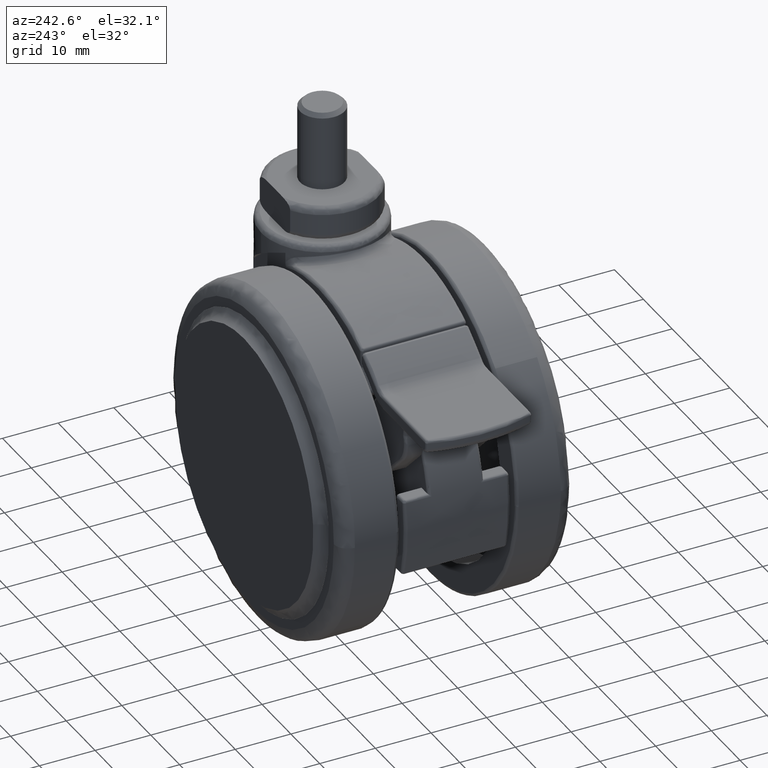
[diagram: clean part render]
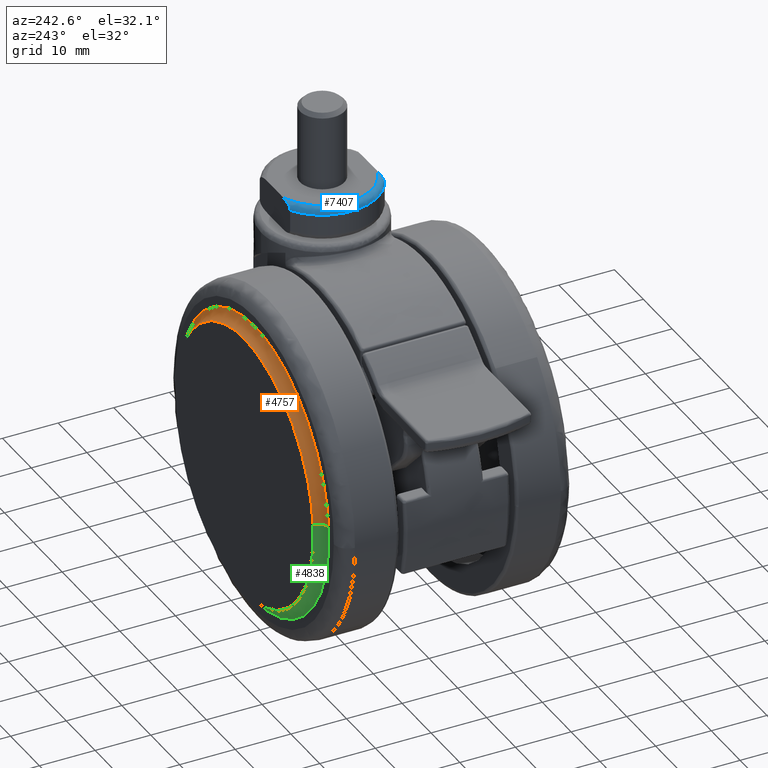
[diagram: same view with three faces highlighted in distinct colors, each labeled with its STEP entity id]
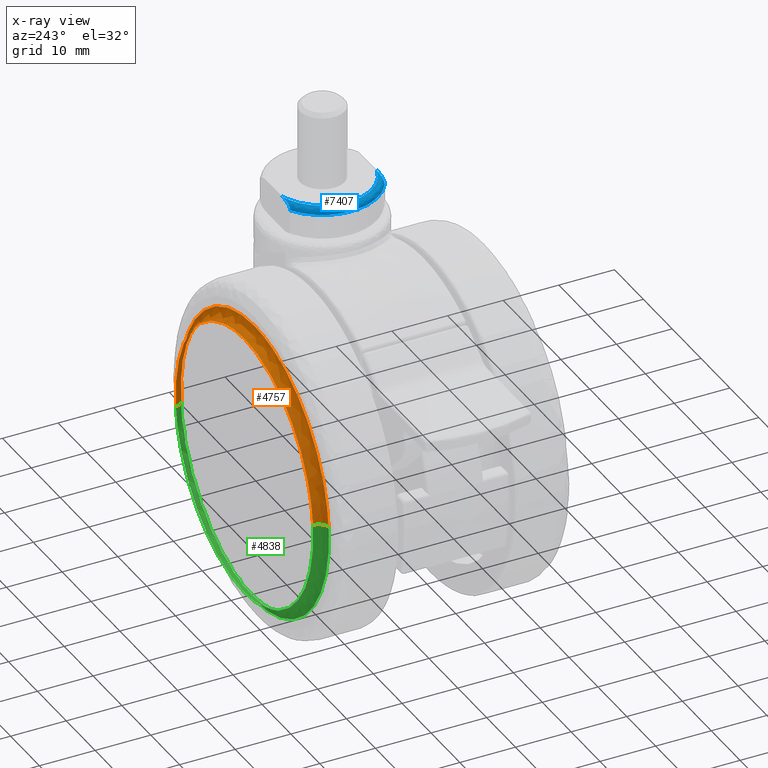
[diagram: x-ray of the same camera — body ghosted, the three highlighted faces saturated]
A machine part, auxiliary view with three faces highlighted in distinct colors.
The next image is the same camera in x-ray (body ghosted, the three faces saturated) — at least one of them is partly hidden behind the body in this view.
Their STEP definitions:

[orange] entity #4757 — the highlighted face is a freeform B-spline surface patch.
#4582=CARTESIAN_POINT('',(23.783222111210389,22.799999999489390,-2.097494252924088));
#4583=VERTEX_POINT('',#4582);
#4584=CARTESIAN_POINT('',(2.792102E-015,22.800000000000001,23.875534258511259));
#4585=VERTEX_POINT('',#4584);
#4586=CARTESIAN_POINT('',(23.783222111210392,22.799999999489387,-2.097494252924089));
#4587=CARTESIAN_POINT('',(23.875534258569957,22.799999999499676,-1.050778486631238));
#4588=CARTESIAN_POINT('',(23.875534258568639,22.799999999510920,-5.057056E-012));
#4589=CARTESIAN_POINT('',(23.875534258538682,22.799999999766211,23.875534258508829));
#4590=CARTESIAN_POINT('',(2.792102E-015,22.800000000000001,23.875534258511259));
#4598=(BOUNDED_CURVE()B_SPLINE_CURVE(2,(#4586,#4587,#4588,#4589,#4590),.UNSPECIFIED.,.F.,.U.)B_SPLINE_CURVE_WITH_KNOTS((3,2,3),(0.734718454855897,0.750000000000000,1.0),.UNSPECIFIED.)CURVE()GEOMETRIC_REPRESENTATION_ITEM()RATIONAL_B_SPLINE_CURVE((0.966381850709618,0.982096556217202,1.0,0.707106781186547,1.0))REPRESENTATION_ITEM(''));
#4599=EDGE_CURVE('',#4583,#4585,#4598,.T.);
#4616=CARTESIAN_POINT('',(-23.783222111210382,22.799999999489401,2.097494252924087));
#4617=VERTEX_POINT('',#4616);
#4633=CARTESIAN_POINT('',(2.792102E-015,22.800000000000001,23.875534258511259));
#4634=CARTESIAN_POINT('',(-21.862569243453560,22.799999999744696,23.875534258513884));
#4635=CARTESIAN_POINT('',(-23.783222111210382,22.799999999489398,2.097494252924088));
#4643=(BOUNDED_CURVE()B_SPLINE_CURVE(2,(#4633,#4634,#4635),.UNSPECIFIED.,.F.,.U.)B_SPLINE_CURVE_WITH_KNOTS((3,3),(0.0,0.234718454855897),.UNSPECIFIED.)CURVE()GEOMETRIC_REPRESENTATION_ITEM()RATIONAL_B_SPLINE_CURVE((1.0,0.725010224969346,0.966381850709618))REPRESENTATION_ITEM(''));
#4644=EDGE_CURVE('',#4585,#4617,#4643,.T.);
#4649=CARTESIAN_POINT('',(25.770919224174254,21.000298617983251,-3.000662758505905));
#4650=CARTESIAN_POINT('',(25.802582218380351,21.000298617983258,-2.641640070902792));
#4651=CARTESIAN_POINT('',(28.113027338513429,21.000298617983258,23.556204996762741));
#4652=CARTESIAN_POINT('',(2.278411170875352,21.000298617983258,25.834616167638092));
#4653=CARTESIAN_POINT('',(-23.556204996762727,21.000298617983258,28.113027338513429));
#4654=CARTESIAN_POINT('',(-25.866650116892103,21.000298617983265,1.915182270890007));
#4655=CARTESIAN_POINT('',(-25.898313111094566,21.000298617983269,1.556159583328023));
#4656=CARTESIAN_POINT('',(23.817966024781878,20.966653986003571,-2.773268699196426));
#4657=CARTESIAN_POINT('',(23.847229556815165,20.966653986003568,-2.441453209765401));
#4658=CARTESIAN_POINT('',(25.982586192516081,20.966653986003571,21.771085672388139));
#4659=CARTESIAN_POINT('',(2.105750260063976,20.966653986003585,23.876835932452099));
#4660=CARTESIAN_POINT('',(-21.771085672388139,20.966653986003582,25.982586192516081));
#4661=CARTESIAN_POINT('',(-23.906442308085616,20.966653986003582,1.770047310401455));
#4662=CARTESIAN_POINT('',(-23.935705840115549,20.966653986003575,1.438231821008440));
#4663=CARTESIAN_POINT('',(23.713570901116626,22.929511528702129,-2.761113348546066));
#4664=CARTESIAN_POINT('',(23.742706169886681,22.929511528702136,-2.430752220038100));
#4665=CARTESIAN_POINT('',(25.868703449720620,22.929511528702140,21.675662109404986));
#4666=CARTESIAN_POINT('',(2.096520670157818,22.929511528702136,23.772182779562819));
#4667=CARTESIAN_POINT('',(-21.675662109404986,22.929511528702140,25.868703449720634));
#4668=CARTESIAN_POINT('',(-23.801659389235532,22.929511528702140,1.762289120316272));
#4669=CARTESIAN_POINT('',(-23.830794658002254,22.929511528702140,1.431927991846149));
#4677=(BOUNDED_SURFACE()B_SPLINE_SURFACE(2,2,((#4649,#4656,#4663),(#4650,#4657,#4664),(#4651,#4658,#4665),(#4652,#4659,#4666),(#4653,#4660,#4667),(#4654,#4661,#4668),(#4655,#4662,#4669)),.UNSPECIFIED.,.F.,.F.,.U.)B_SPLINE_SURFACE_WITH_KNOTS((3,1,2,1,3),(3,3),(0.0,0.859406673807440,43.829740360443992,86.800074047080543,87.659480720787798),(0.0,3.291618988373875),.UNSPECIFIED.)GEOMETRIC_REPRESENTATION_ITEM()RATIONAL_B_SPLINE_SURFACE(((0.925314182526342,0.666727536463893,0.927111751548754),(0.919956585690493,0.662867164055054,0.921743746734416),(0.646719147085479,0.465988171221028,0.647975501226541),(0.914598988854644,0.659006791646214,0.916375741920079),(0.646719147085479,0.465988171221028,0.647975501226541),(0.919956585689869,0.662867164054603,0.921743746733790),(0.925314182525093,0.666727536462993,0.927111751547502)))REPRESENTATION_ITEM('')SURFACE());
#4678=CARTESIAN_POINT('',(25.704905294196660,21.002230012307500,-2.266971685981109));
#4679=VERTEX_POINT('',#4678);
#4680=CARTESIAN_POINT('',(2.571946E-015,21.002230012286780,25.804676258992949));
#4681=VERTEX_POINT('',#4680);
#4682=CARTESIAN_POINT('',(25.704905294196664,21.002230012307496,-2.266971685981109));
#4683=CARTESIAN_POINT('',(25.804676258562225,21.002230012307081,-1.135681336940857));
#4684=CARTESIAN_POINT('',(25.804676258571899,21.002230012306619,3.713154E-011));
#4685=CARTESIAN_POINT('',(25.804676258791702,21.002230012296259,25.804676259010705));
#4686=CARTESIAN_POINT('',(2.571946E-015,21.002230012286780,25.804676258992949));
#4694=(BOUNDED_CURVE()B_SPLINE_CURVE(2,(#4682,#4683,#4684,#4685,#4686),.UNSPECIFIED.,.F.,.U.)B_SPLINE_CURVE_WITH_KNOTS((3,2,3),(0.734718454855625,0.750000000000000,1.0),.UNSPECIFIED.)CURVE()GEOMETRIC_REPRESENTATION_ITEM()RATIONAL_B_SPLINE_CURVE((0.966381850709060,0.982096556216884,1.0,0.707106781186547,1.0))REPRESENTATION_ITEM(''));
#4695=EDGE_CURVE('',#4679,#4681,#4694,.T.);
#4696=ORIENTED_EDGE('',*,*,#4695,.F.);
#4697=CARTESIAN_POINT('',(25.704905294196664,21.002230012307500,-2.266971685981109));
#4698=CARTESIAN_POINT('',(23.984676776129255,21.083073021873290,-2.115260979418126));
#4699=CARTESIAN_POINT('',(23.783222111210392,22.799999999489394,-2.097494252924089));
#4707=(BOUNDED_CURVE()B_SPLINE_CURVE(2,(#4697,#4698,#4699),.UNSPECIFIED.,.F.,.U.)B_SPLINE_CURVE_WITH_KNOTS((3,3),(-1.703172706421857,-0.291449015805452),.UNSPECIFIED.)CURVE()GEOMETRIC_REPRESENTATION_ITEM()RATIONAL_B_SPLINE_CURVE((0.892442377405242,0.681244095356117,0.894057745885278))REPRESENTATION_ITEM(''));
#4708=EDGE_CURVE('',#4679,#4583,#4707,.T.);
#4709=ORIENTED_EDGE('',*,*,#4708,.T.);
#4710=ORIENTED_EDGE('',*,*,#4599,.T.);
#4711=ORIENTED_EDGE('',*,*,#4644,.T.);
#4712=CARTESIAN_POINT('',(-25.704905294196660,21.002230012307500,2.266971685981101));
#4713=VERTEX_POINT('',#4712);
#4714=CARTESIAN_POINT('',(-25.704905294196656,21.002230012307511,2.266971685981101));
#4715=CARTESIAN_POINT('',(-23.984676776129259,21.083073021873311,2.115260979418123));
#4716=CARTESIAN_POINT('',(-23.783222111210382,22.799999999489394,2.097494252924087));
#4724=(BOUNDED_CURVE()B_SPLINE_CURVE(2,(#4714,#4715,#4716),.UNSPECIFIED.,.F.,.U.)B_SPLINE_CURVE_WITH_KNOTS((3,3),(-1.703172706421852,-0.291449015805456),.UNSPECIFIED.)CURVE()GEOMETRIC_REPRESENTATION_ITEM()RATIONAL_B_SPLINE_CURVE((0.892442377405241,0.681244095356118,0.894057745885277))REPRESENTATION_ITEM(''));
#4725=EDGE_CURVE('',#4713,#4617,#4724,.T.);
#4726=ORIENTED_EDGE('',*,*,#4725,.F.);
#4727=CARTESIAN_POINT('',(-6.417362027172174,21.002230012288312,24.993974902826331));
#4728=VERTEX_POINT('',#4727);
#4729=CARTESIAN_POINT('',(-6.417362027172175,21.002230012288305,24.993974902826334));
#4730=CARTESIAN_POINT('',(-24.100987604364537,21.002230012298700,20.453591561398333));
#4731=CARTESIAN_POINT('',(-25.704905294196656,21.002230012307503,2.266971685981102));
#4739=(BOUNDED_CURVE()B_SPLINE_CURVE(2,(#4729,#4730,#4731),.UNSPECIFIED.,.F.,.U.)B_SPLINE_CURVE_WITH_KNOTS((3,3),(0.042443238243577,0.234718454855625),.UNSPECIFIED.)CURVE()GEOMETRIC_REPRESENTATION_ITEM()RATIONAL_B_SPLINE_CURVE((0.917433344553455,0.768656530594835,0.966381850709060))REPRESENTATION_ITEM(''));
#4740=EDGE_CURVE('',#4728,#4713,#4739,.T.);
#4741=ORIENTED_EDGE('',*,*,#4740,.F.);
#4742=CARTESIAN_POINT('',(2.571946E-015,21.002230012286780,25.804676258992949));
#4743=CARTESIAN_POINT('',(-3.259888712804901,21.002230012287402,25.804676258996071));
#4744=CARTESIAN_POINT('',(-6.417362027172174,21.002230012288312,24.993974902826331));
#4752=(BOUNDED_CURVE()B_SPLINE_CURVE(2,(#4742,#4743,#4744),.UNSPECIFIED.,.F.,.U.)B_SPLINE_CURVE_WITH_KNOTS((3,3),(0.0,0.042443238243576),.UNSPECIFIED.)CURVE()GEOMETRIC_REPRESENTATION_ITEM()RATIONAL_B_SPLINE_CURVE((1.0,0.950274653335891,0.917433344553455))REPRESENTATION_ITEM(''));
#4753=EDGE_CURVE('',#4681,#4728,#4752,.T.);
#4754=ORIENTED_EDGE('',*,*,#4753,.F.);
#4755=EDGE_LOOP('',(#4696,#4709,#4710,#4711,#4726,#4741,#4754));
#4756=FACE_OUTER_BOUND('',#4755,.T.);
#4757=ADVANCED_FACE('',(#4756),#4677,.F.);

[blue] entity #7407 — the highlighted face is a freeform B-spline surface patch.
#6953=CARTESIAN_POINT('',(11.732173123573560,8.500000000000000,37.400000000000013));
#6954=VERTEX_POINT('',#6953);
#6960=CARTESIAN_POINT('',(14.361818808345360,8.500000000000000,38.500000000000000));
#6961=VERTEX_POINT('',#6960);
#6962=CARTESIAN_POINT('',(14.361818808345360,8.500000000000000,38.500000000000000));
#6963=CARTESIAN_POINT('',(14.180705627136900,8.500000000000000,38.499999999985718));
#6964=CARTESIAN_POINT('',(13.999987454202641,8.500000000000000,38.496117348309539));
#6965=CARTESIAN_POINT('',(13.639834943331479,8.500000000000000,38.475732855913392));
#6966=CARTESIAN_POINT('',(13.460394029185730,8.500000000000000,38.459295654670292));
#6967=CARTESIAN_POINT('',(13.103486130387790,8.500000000000000,38.407018922843072));
#6968=CARTESIAN_POINT('',(12.925994609388210,8.500000000000000,38.371420567181502));
#6969=CARTESIAN_POINT('',(12.706162219471331,8.499999999999998,38.306949389908802));
#6970=CARTESIAN_POINT('',(12.662300186823311,8.500000000000002,38.293028530757077));
#6971=CARTESIAN_POINT('',(12.574822115581259,8.500000000000002,38.262768865071500));
#6972=CARTESIAN_POINT('',(12.531332009502121,8.500000000000002,38.246465471662127));
#6973=CARTESIAN_POINT('',(12.402925031862370,8.499999999999998,38.193956335203609));
#6974=CARTESIAN_POINT('',(12.319601713528110,8.499999999999998,38.154088392751092));
#6975=CARTESIAN_POINT('',(12.199376864950329,8.500000000000000,38.084141955876447));
#6976=CARTESIAN_POINT('',(12.160148380140971,8.500000000000002,38.059117707353003));
#6977=CARTESIAN_POINT('',(12.084946254120730,8.500000000000000,38.005860821964070));
#6978=CARTESIAN_POINT('',(12.048813441161800,8.500000000000000,37.977545807658103));
#6979=CARTESIAN_POINT('',(11.980056287637741,8.500000000000002,37.916885614065528));
#6980=CARTESIAN_POINT('',(11.947424541836281,8.500000000000002,37.884548941137467));
#6981=CARTESIAN_POINT('',(11.886564120158480,8.500000000000000,37.814817810516992));
#6982=CARTESIAN_POINT('',(11.858234525279800,8.500000000000002,37.777160591513898));
#6983=CARTESIAN_POINT('',(11.809296620395770,8.500000000000000,37.698384118300943));
#6984=CARTESIAN_POINT('',(11.788401054494550,8.500000000000002,37.657015034713417));
#6985=CARTESIAN_POINT('',(11.755366870145370,8.500000000000000,37.569422600380733));
#6986=CARTESIAN_POINT('',(11.743750110243360,8.500000000000000,37.524380629105202));
#6987=CARTESIAN_POINT('',(11.734413445527791,8.500000000000000,37.455865874881930));
#6988=CARTESIAN_POINT('',(11.732633876299451,8.500000000000002,37.432816167630477));
#6989=CARTESIAN_POINT('',(11.732198205700850,8.500000000000000,37.406368663249090));
#6990=CARTESIAN_POINT('',(11.732172444164240,8.500000000000000,37.403186374478082));
#6991=CARTESIAN_POINT('',(11.732173123573560,8.500000000000000,37.400000000000013));
#6992=B_SPLINE_CURVE_WITH_KNOTS('',3,(#6962,#6963,#6964,#6965,#6966,#6967,#6968,#6969,#6970,#6971,#6972,#6973,#6974,#6975,#6976,#6977,#6978,#6979,#6980,#6981,#6982,#6983,#6984,#6985,#6986,#6987,#6988,#6989,#6990,#6991),.UNSPECIFIED.,.F.,.U.,(4,2,2,2,2,2,2,2,2,2,2,2,2,2,4),(0.0,0.031249999999997,0.062499999999995,0.093749999999992,0.101562499999991,0.109374999999990,0.124999999999989,0.132812499999988,0.140624999999987,0.148437499999986,0.156249999999986,0.164062499999985,0.171874999999984,0.175781249999983,0.176314407642907),.UNSPECIFIED.);
#6993=EDGE_CURVE('',#6961,#6954,#6992,.T.);
#7171=CARTESIAN_POINT('',(14.361818808345721,-8.500000000000000,38.500000000000000));
#7172=VERTEX_POINT('',#7171);
#7178=CARTESIAN_POINT('',(11.732173123573560,-8.500000000000000,37.400000000000013));
#7179=VERTEX_POINT('',#7178);
#7180=CARTESIAN_POINT('',(11.732173123573560,-8.500000000000000,37.400000000000013));
#7181=CARTESIAN_POINT('',(11.732172488270839,-8.500000000000000,37.410532627479590));
#7182=CARTESIAN_POINT('',(11.732456352009690,-8.499999999999998,37.421051208579527));
#7183=CARTESIAN_POINT('',(11.735560858004380,-8.500000000000002,37.478146581404957));
#7184=CARTESIAN_POINT('',(11.743663911183299,-8.500000000000000,37.523953647868623));
#7185=CARTESIAN_POINT('',(11.763655289263239,-8.500000000000000,37.591468994513697));
#7186=CARTESIAN_POINT('',(11.771641910389411,-8.500000000000000,37.613746975414983));
#7187=CARTESIAN_POINT('',(11.789718039978020,-8.500000000000002,37.656933432088593));
#7188=CARTESIAN_POINT('',(11.799843767352931,-8.500000000000000,37.677977107869623));
#7189=CARTESIAN_POINT('',(11.833193779549809,-8.500000000000000,37.739606082652337));
#7190=CARTESIAN_POINT('',(11.859628387749940,-8.499999999999996,37.778963178361160));
#7191=CARTESIAN_POINT('',(11.917574268768220,-8.500000000000004,37.852151114619602));
#7192=CARTESIAN_POINT('',(11.949144893356580,-8.500000000000000,37.886212133546962));
#7193=CARTESIAN_POINT('',(12.016454562965150,-8.500000000000000,37.950269628954082));
#7194=CARTESIAN_POINT('',(12.052271649254850,-8.500000000000000,37.980310022340163));
#7195=CARTESIAN_POINT('',(12.127155473101750,-8.500000000000000,38.036717624212237));
#7196=CARTESIAN_POINT('',(12.165745790160910,-8.500000000000002,38.062742935964458));
#7197=CARTESIAN_POINT('',(12.284284924468800,-8.500000000000004,38.135567713053263));
#7198=CARTESIAN_POINT('',(12.366969295327090,-8.500000000000002,38.177177917418319));
#7199=CARTESIAN_POINT('',(12.537613721165521,-8.500000000000004,38.250390515804149));
#7200=CARTESIAN_POINT('',(12.625868207513619,-8.500000000000000,38.281983120571432));
#7201=CARTESIAN_POINT('',(12.891775912654150,-8.500000000000000,38.363515575781783));
#7202=CARTESIAN_POINT('',(13.072249236348080,-8.499999999999998,38.401310932275237));
#7203=CARTESIAN_POINT('',(13.345865888095100,-8.500000000000002,38.442969462979804));
#7204=CARTESIAN_POINT('',(13.437572104229771,-8.500000000000000,38.454265986397452));
#7205=CARTESIAN_POINT('',(13.621793778241130,-8.500000000000000,38.472673293497451));
#7206=CARTESIAN_POINT('',(13.714421266207220,-8.499999999999998,38.479784587442602));
#7207=CARTESIAN_POINT('',(13.991996857293129,-8.500000000000000,38.495971545967421));
#7208=CARTESIAN_POINT('',(14.176939827584400,-8.500000000000000,38.499999999981547));
#7209=CARTESIAN_POINT('',(14.361818808345721,-8.500000000000000,38.500000000000000));
#7210=B_SPLINE_CURVE_WITH_KNOTS('',3,(#7180,#7181,#7182,#7183,#7184,#7185,#7186,#7187,#7188,#7189,#7190,#7191,#7192,#7193,#7194,#7195,#7196,#7197,#7198,#7199,#7200,#7201,#7202,#7203,#7204,#7205,#7206,#7207,#7208,#7209),.UNSPECIFIED.,.F.,.U.,(4,2,2,2,2,2,2,2,2,2,2,2,2,2,4),(0.826376939406697,0.828125000000032,0.835937500000031,0.839843750000030,0.843750000000030,0.851562500000028,0.859375000000027,0.867187500000025,0.875000000000024,0.890625000000021,0.906250000000018,0.937500000000012,0.953125000000009,0.968750000000006,1.0),.UNSPECIFIED.);
#7211=EDGE_CURVE('',#7179,#7172,#7210,.T.);
#7283=CARTESIAN_POINT('',(14.361818808345721,-8.500000000000000,38.500000000000000));
#7284=CARTESIAN_POINT('',(13.715287075608311,-8.299460922832015,38.500000000000028));
#7285=CARTESIAN_POINT('',(12.495486659631361,-7.761783866358752,38.499999999999957));
#7286=CARTESIAN_POINT('',(11.068749699742160,-6.703442541975331,38.500000000000149));
#7287=CARTESIAN_POINT('',(10.084129950972420,-5.644237719278022,38.499999999999773));
#7288=CARTESIAN_POINT('',(9.369576332901884,-4.632879768659025,38.499999999999993));
#7289=CARTESIAN_POINT('',(8.782255705400885,-3.507911374300521,38.500000000000263));
#7290=CARTESIAN_POINT('',(8.259921122948404,-1.970331973588849,38.500000000000618));
#7291=CARTESIAN_POINT('',(8.057914722114941,-0.412486030270529,38.499999999998487));
#7292=CARTESIAN_POINT('',(8.136871512933954,1.030511011006077,38.499999999999993));
#7293=CARTESIAN_POINT('',(8.356781827855771,2.249126901079268,38.500000000001300));
#7294=CARTESIAN_POINT('',(8.731140593302534,3.369700863546100,38.499999999996753));
#7295=CARTESIAN_POINT('',(9.282229295433719,4.478235882799178,38.500000000004313));
#7296=CARTESIAN_POINT('',(10.064471508979899,5.658730960454690,38.499999999996703));
#7297=CARTESIAN_POINT('',(11.053154176184540,6.680647604364148,38.500000000001229));
#7298=CARTESIAN_POINT('',(12.526321574908851,7.762108241382680,38.499999999999673));
#7299=CARTESIAN_POINT('',(13.574632282475131,8.256044428192826,38.500000000000533));
#7300=CARTESIAN_POINT('',(14.361818808345360,8.500000000000000,38.500000000000000));
#7301=B_SPLINE_CURVE_WITH_KNOTS('',3,(#7283,#7284,#7285,#7286,#7287,#7288,#7289,#7290,#7291,#7292,#7293,#7294,#7295,#7296,#7297,#7298,#7299,#7300),.UNSPECIFIED.,.F.,.U.,(4,1,1,1,1,1,1,1,1,1,1,1,1,1,1,4),(0.000000123495532,2.030736821722449,3.973250387094815,5.297675313116248,6.357213347587294,7.681651169808898,9.094362491386947,11.213439338599059,12.361197991742930,13.420771883745690,14.921774873230820,15.893018215774520,17.129149206461850,19.159924490909130,20.131195404345501,22.603409302364732),.UNSPECIFIED.);
#7302=EDGE_CURVE('',#7172,#6961,#7301,.T.);
#7361=CARTESIAN_POINT('',(15.412378667501345,-8.679293734191454,38.497322931977415));
#7362=CARTESIAN_POINT('',(8.176696694560462,-7.355738683834930,38.497322931977429));
#7363=CARTESIAN_POINT('',(8.176696694560462,2.896196E-014,38.497322931977415));
#7364=CARTESIAN_POINT('',(8.176696694560459,7.355738531814065,38.497322931977408));
#7365=CARTESIAN_POINT('',(15.412378491054209,8.679293701915695,38.497322931977401));
#7366=CARTESIAN_POINT('',(15.185342771355709,-9.920465788583126,38.585513269115161));
#7367=CARTESIAN_POINT('',(6.914930723097648,-8.407637325981096,38.585513269115161));
#7368=CARTESIAN_POINT('',(6.914930723097646,2.903922E-014,38.585513269115154));
#7369=CARTESIAN_POINT('',(6.914930723097642,8.407637152220660,38.585513269115140));
#7370=CARTESIAN_POINT('',(15.185342569675953,9.920465751691806,38.585513269115147));
#7371=CARTESIAN_POINT('',(15.201126256860990,-9.834179780675898,37.323714351406515));
#7372=CARTESIAN_POINT('',(7.002648415584750,-8.334509564013946,37.323714351406508));
#7373=CARTESIAN_POINT('',(7.002648415584750,2.903385E-014,37.323714351406522));
#7374=CARTESIAN_POINT('',(7.002648415584747,8.334509391764843,37.323714351406508));
#7375=CARTESIAN_POINT('',(15.201126056935404,9.834179744105450,37.323714351406522));
#7383=(BOUNDED_SURFACE()B_SPLINE_SURFACE(2,2,((#7361,#7366,#7371),(#7362,#7367,#7372),(#7363,#7368,#7373),(#7364,#7369,#7374),(#7365,#7370,#7375)),.UNSPECIFIED.,.F.,.F.,.U.)B_SPLINE_SURFACE_WITH_KNOTS((3,2,3),(3,3),(0.0,14.482072543577450,28.964144860042630),(0.0,2.004607489314867),.UNSPECIFIED.)GEOMETRIC_REPRESENTATION_ITEM()RATIONAL_B_SPLINE_SURFACE(((0.891854389571714,0.586884576172750,0.896821997250981),(0.693408625558521,0.456297386752638,0.697270895065148),(0.913811094967896,0.601333181114613,0.918901000972554),(0.693408629014940,0.456297389027133,0.697270898540819),(0.891854383347541,0.586884572076934,0.896821990992139)))REPRESENTATION_ITEM('')SURFACE());
#7384=ORIENTED_EDGE('',*,*,#7302,.T.);
#7385=ORIENTED_EDGE('',*,*,#6993,.T.);
#7386=CARTESIAN_POINT('',(11.732173123573560,-8.500000000000000,37.400000000000013));
#7387=CARTESIAN_POINT('',(11.169903116212749,-8.151620594801800,37.399999999999878));
#7388=CARTESIAN_POINT('',(10.093758224199121,-7.326581359824849,37.400000000000183));
#7389=CARTESIAN_POINT('',(8.839094798048851,-5.879685566922861,37.399999999999977));
#7390=CARTESIAN_POINT('',(7.876266501462796,-4.228230049715981,37.400000000000027));
#7391=CARTESIAN_POINT('',(7.345343497896561,-2.752094588197134,37.400000000000013));
#7392=CARTESIAN_POINT('',(7.053587927980826,-1.270439996420073,37.400000000000013));
#7393=CARTESIAN_POINT('',(6.958747507916602,0.132595860984629,37.399999999999871));
#7394=CARTESIAN_POINT('',(7.118396637109009,1.877621287959161,37.400000000000638));
#7395=CARTESIAN_POINT('',(7.585271938759211,3.514691609679263,37.399999999999388));
#7396=CARTESIAN_POINT('',(8.240750017252058,4.876737552067809,37.399999999998727));
#7397=CARTESIAN_POINT('',(9.043326909596722,6.124922228377542,37.400000000002230));
#7398=CARTESIAN_POINT('',(10.155716085678870,7.377281531098438,37.399999999998791));
#7399=CARTESIAN_POINT('',(11.192396783449951,8.165553078359222,37.400000000000247));
#7400=CARTESIAN_POINT('',(11.732173123573560,8.500000000000000,37.400000000000013));
#7401=B_SPLINE_CURVE_WITH_KNOTS('',3,(#7386,#7387,#7388,#7389,#7390,#7391,#7392,#7393,#7394,#7395,#7396,#7397,#7398,#7399,#7400),.UNSPECIFIED.,.F.,.U.,(4,1,1,1,1,1,1,1,1,1,1,1,4),(0.000000102846510,1.984347365809363,4.048067634621859,5.714937997953255,7.699307923827629,8.731156478660621,10.239214342568870,11.906078152065360,13.969833119093430,15.319194843351861,16.430439936848579,18.414788165063140,20.319759216062231),.UNSPECIFIED.);
#7402=EDGE_CURVE('',#7179,#6954,#7401,.T.);
#7403=ORIENTED_EDGE('',*,*,#7402,.F.);
#7404=ORIENTED_EDGE('',*,*,#7211,.T.);
#7405=EDGE_LOOP('',(#7384,#7385,#7403,#7404));
#7406=FACE_OUTER_BOUND('',#7405,.T.);
#7407=ADVANCED_FACE('',(#7406),#7383,.T.);

[green] entity #4838 — the highlighted face is a freeform B-spline surface patch.
#4582=CARTESIAN_POINT('',(23.783222111210389,22.799999999489390,-2.097494252924088));
#4583=VERTEX_POINT('',#4582);
#4601=CARTESIAN_POINT('',(2.792102E-015,22.800000000000001,-23.875534258511252));
#4602=VERTEX_POINT('',#4601);
#4603=CARTESIAN_POINT('',(2.792102E-015,22.800000000000001,-23.875534258511252));
#4604=CARTESIAN_POINT('',(21.862569243453571,22.799999999744692,-23.875534258513881));
#4605=CARTESIAN_POINT('',(23.783222111210392,22.799999999489387,-2.097494252924089));
#4613=(BOUNDED_CURVE()B_SPLINE_CURVE(2,(#4603,#4604,#4605),.UNSPECIFIED.,.F.,.U.)B_SPLINE_CURVE_WITH_KNOTS((3,3),(0.500000000000000,0.734718454855897),.UNSPECIFIED.)CURVE()GEOMETRIC_REPRESENTATION_ITEM()RATIONAL_B_SPLINE_CURVE((1.0,0.725010224969346,0.966381850709618))REPRESENTATION_ITEM(''));
#4614=EDGE_CURVE('',#4602,#4583,#4613,.T.);
#4616=CARTESIAN_POINT('',(-23.783222111210382,22.799999999489401,2.097494252924087));
#4617=VERTEX_POINT('',#4616);
#4618=CARTESIAN_POINT('',(-23.783222111210382,22.799999999489398,2.097494252924088));
#4619=CARTESIAN_POINT('',(-23.875534258569946,22.799999999499686,1.050778486631239));
#4620=CARTESIAN_POINT('',(-23.875534258568631,22.799999999510920,5.060183E-012));
#4621=CARTESIAN_POINT('',(-23.875534258538682,22.799999999766225,-23.875534258508829));
#4622=CARTESIAN_POINT('',(2.792102E-015,22.800000000000001,-23.875534258511252));
#4630=(BOUNDED_CURVE()B_SPLINE_CURVE(2,(#4618,#4619,#4620,#4621,#4622),.UNSPECIFIED.,.F.,.U.)B_SPLINE_CURVE_WITH_KNOTS((3,2,3),(0.234718454855897,0.250000000000000,0.500000000000000),.UNSPECIFIED.)CURVE()GEOMETRIC_REPRESENTATION_ITEM()RATIONAL_B_SPLINE_CURVE((0.966381850709618,0.982096556217202,1.0,0.707106781186547,1.0))REPRESENTATION_ITEM(''));
#4631=EDGE_CURVE('',#4617,#4602,#4630,.T.);
#4678=CARTESIAN_POINT('',(25.704905294196660,21.002230012307500,-2.266971685981109));
#4679=VERTEX_POINT('',#4678);
#4697=CARTESIAN_POINT('',(25.704905294196664,21.002230012307500,-2.266971685981109));
#4698=CARTESIAN_POINT('',(23.984676776129255,21.083073021873290,-2.115260979418126));
#4699=CARTESIAN_POINT('',(23.783222111210392,22.799999999489394,-2.097494252924089));
#4707=(BOUNDED_CURVE()B_SPLINE_CURVE(2,(#4697,#4698,#4699),.UNSPECIFIED.,.F.,.U.)B_SPLINE_CURVE_WITH_KNOTS((3,3),(-1.703172706421857,-0.291449015805452),.UNSPECIFIED.)CURVE()GEOMETRIC_REPRESENTATION_ITEM()RATIONAL_B_SPLINE_CURVE((0.892442377405242,0.681244095356117,0.894057745885278))REPRESENTATION_ITEM(''));
#4708=EDGE_CURVE('',#4679,#4583,#4707,.T.);
#4712=CARTESIAN_POINT('',(-25.704905294196660,21.002230012307500,2.266971685981101));
#4713=VERTEX_POINT('',#4712);
#4714=CARTESIAN_POINT('',(-25.704905294196656,21.002230012307511,2.266971685981101));
#4715=CARTESIAN_POINT('',(-23.984676776129259,21.083073021873311,2.115260979418123));
#4716=CARTESIAN_POINT('',(-23.783222111210382,22.799999999489394,2.097494252924087));
#4724=(BOUNDED_CURVE()B_SPLINE_CURVE(2,(#4714,#4715,#4716),.UNSPECIFIED.,.F.,.U.)B_SPLINE_CURVE_WITH_KNOTS((3,3),(-1.703172706421852,-0.291449015805456),.UNSPECIFIED.)CURVE()GEOMETRIC_REPRESENTATION_ITEM()RATIONAL_B_SPLINE_CURVE((0.892442377405241,0.681244095356118,0.894057745885277))REPRESENTATION_ITEM(''));
#4725=EDGE_CURVE('',#4713,#4617,#4724,.T.);
#4758=CARTESIAN_POINT('',(-25.770919224174243,21.000298617983265,3.000662758505903));
#4759=CARTESIAN_POINT('',(-25.802582218380341,21.000298617983265,2.641640070902790));
#4760=CARTESIAN_POINT('',(-28.113027338513415,21.000298617983258,-23.556204996762741));
#4761=CARTESIAN_POINT('',(-2.278411170875343,21.000298617983258,-25.834616167638092));
#4762=CARTESIAN_POINT('',(23.556204996762741,21.000298617983258,-28.113027338513429));
#4763=CARTESIAN_POINT('',(25.866650116892114,21.000298617983265,-1.915182270890005));
#4764=CARTESIAN_POINT('',(25.898313111094588,21.000298617983258,-1.556159583328020));
#4765=CARTESIAN_POINT('',(-23.817966024781878,20.966653986003571,2.773268699196423));
#4766=CARTESIAN_POINT('',(-23.847229556815165,20.966653986003585,2.441453209765396));
#4767=CARTESIAN_POINT('',(-25.982586192516059,20.966653986003582,-21.771085672388139));
#4768=CARTESIAN_POINT('',(-2.105750260063967,20.966653986003585,-23.876835932452110));
#4769=CARTESIAN_POINT('',(21.771085672388139,20.966653986003571,-25.982586192516081));
#4770=CARTESIAN_POINT('',(23.906442308085630,20.966653986003582,-1.770047310401454));
#4771=CARTESIAN_POINT('',(23.935705840115549,20.966653986003575,-1.438231821008438));
#4772=CARTESIAN_POINT('',(-23.713570901116615,22.929511528702143,2.761113348546062));
#4773=CARTESIAN_POINT('',(-23.742706169886681,22.929511528702136,2.430752220038095));
#4774=CARTESIAN_POINT('',(-25.868703449720620,22.929511528702140,-21.675662109405003));
#4775=CARTESIAN_POINT('',(-2.096520670157810,22.929511528702136,-23.772182779562819));
#4776=CARTESIAN_POINT('',(21.675662109405003,22.929511528702140,-25.868703449720620));
#4777=CARTESIAN_POINT('',(23.801659389235532,22.929511528702140,-1.762289120316269));
#4778=CARTESIAN_POINT('',(23.830794658002265,22.929511528702132,-1.431927991846147));
#4786=(BOUNDED_SURFACE()B_SPLINE_SURFACE(2,2,((#4758,#4765,#4772),(#4759,#4766,#4773),(#4760,#4767,#4774),(#4761,#4768,#4775),(#4762,#4769,#4776),(#4763,#4770,#4777),(#4764,#4771,#4778)),.UNSPECIFIED.,.F.,.F.,.U.)B_SPLINE_SURFACE_WITH_KNOTS((3,1,2,1,3),(3,3),(0.0,0.859406673807440,43.829740360443992,86.800074047080543,87.659480720787798),(0.0,3.291618988373867),.UNSPECIFIED.)GEOMETRIC_REPRESENTATION_ITEM()RATIONAL_B_SPLINE_SURFACE(((0.925314182526342,0.666727536463893,0.927111751548754),(0.919956585690493,0.662867164055054,0.921743746734416),(0.646719147085479,0.465988171221028,0.647975501226541),(0.914598988854644,0.659006791646214,0.916375741920079),(0.646719147085479,0.465988171221028,0.647975501226541),(0.919956585689869,0.662867164054603,0.921743746733790),(0.925314182525093,0.666727536462993,0.927111751547502)))REPRESENTATION_ITEM('')SURFACE());
#4787=CARTESIAN_POINT('',(2.571946E-015,21.002230012286851,-25.804676258992949));
#4788=VERTEX_POINT('',#4787);
#4789=CARTESIAN_POINT('',(6.417362027172168,21.002230012288340,-24.993974902826331));
#4790=VERTEX_POINT('',#4789);
#4791=CARTESIAN_POINT('',(2.571946E-015,21.002230012286851,-25.804676258992949));
#4792=CARTESIAN_POINT('',(3.259888712804901,21.002230012287452,-25.804676258996068));
#4793=CARTESIAN_POINT('',(6.417362027172168,21.002230012288340,-24.993974902826327));
#4801=(BOUNDED_CURVE()B_SPLINE_CURVE(2,(#4791,#4792,#4793),.UNSPECIFIED.,.F.,.U.)B_SPLINE_CURVE_WITH_KNOTS((3,3),(0.500000000000000,0.542443238243576),.UNSPECIFIED.)CURVE()GEOMETRIC_REPRESENTATION_ITEM()RATIONAL_B_SPLINE_CURVE((1.0,0.950274653335891,0.917433344553455))REPRESENTATION_ITEM(''));
#4802=EDGE_CURVE('',#4788,#4790,#4801,.T.);
#4803=ORIENTED_EDGE('',*,*,#4802,.F.);
#4804=CARTESIAN_POINT('',(-25.704905294196656,21.002230012307503,2.266971685981102));
#4805=CARTESIAN_POINT('',(-25.804676258562221,21.002230012307088,1.135681336940851));
#4806=CARTESIAN_POINT('',(-25.804676258571892,21.002230012306629,-3.713509E-011));
#4807=CARTESIAN_POINT('',(-25.804676258791684,21.002230012296312,-25.804676259010705));
#4808=CARTESIAN_POINT('',(2.571946E-015,21.002230012286851,-25.804676258992949));
#4816=(BOUNDED_CURVE()B_SPLINE_CURVE(2,(#4804,#4805,#4806,#4807,#4808),.UNSPECIFIED.,.F.,.U.)B_SPLINE_CURVE_WITH_KNOTS((3,2,3),(0.234718454855625,0.250000000000000,0.500000000000000),.UNSPECIFIED.)CURVE()GEOMETRIC_REPRESENTATION_ITEM()RATIONAL_B_SPLINE_CURVE((0.966381850709060,0.982096556216884,1.0,0.707106781186547,1.0))REPRESENTATION_ITEM(''));
#4817=EDGE_CURVE('',#4713,#4788,#4816,.T.);
#4818=ORIENTED_EDGE('',*,*,#4817,.F.);
#4819=ORIENTED_EDGE('',*,*,#4725,.T.);
#4820=ORIENTED_EDGE('',*,*,#4631,.T.);
#4821=ORIENTED_EDGE('',*,*,#4614,.T.);
#4822=ORIENTED_EDGE('',*,*,#4708,.F.);
#4823=CARTESIAN_POINT('',(6.417362027172168,21.002230012288340,-24.993974902826327));
#4824=CARTESIAN_POINT('',(24.100987604364537,21.002230012298700,-20.453591561398348));
#4825=CARTESIAN_POINT('',(25.704905294196664,21.002230012307496,-2.266971685981109));
#4833=(BOUNDED_CURVE()B_SPLINE_CURVE(2,(#4823,#4824,#4825),.UNSPECIFIED.,.F.,.U.)B_SPLINE_CURVE_WITH_KNOTS((3,3),(0.542443238243576,0.734718454855625),.UNSPECIFIED.)CURVE()GEOMETRIC_REPRESENTATION_ITEM()RATIONAL_B_SPLINE_CURVE((0.917433344553455,0.768656530594835,0.966381850709060))REPRESENTATION_ITEM(''));
#4834=EDGE_CURVE('',#4790,#4679,#4833,.T.);
#4835=ORIENTED_EDGE('',*,*,#4834,.F.);
#4836=EDGE_LOOP('',(#4803,#4818,#4819,#4820,#4821,#4822,#4835));
#4837=FACE_OUTER_BOUND('',#4836,.T.);
#4838=ADVANCED_FACE('',(#4837),#4786,.F.);